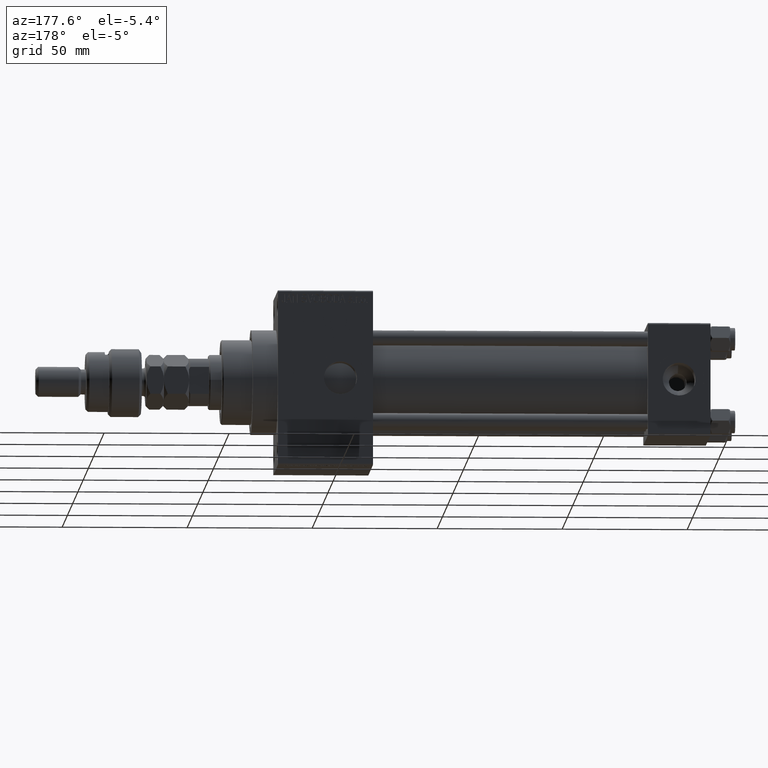
[diagram: clean part render]
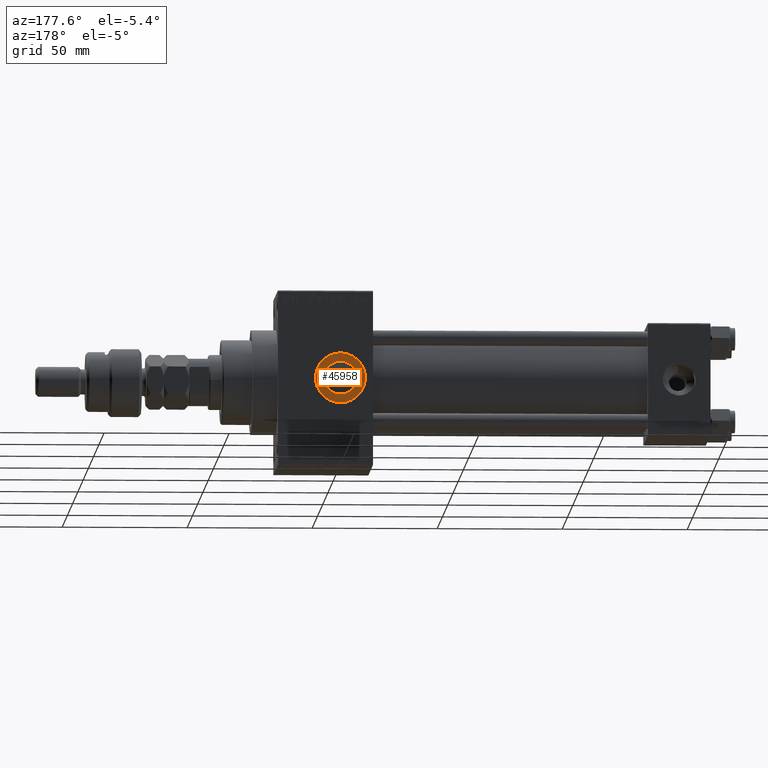
[diagram: same view with one face highlighted and labeled with its STEP entity id]
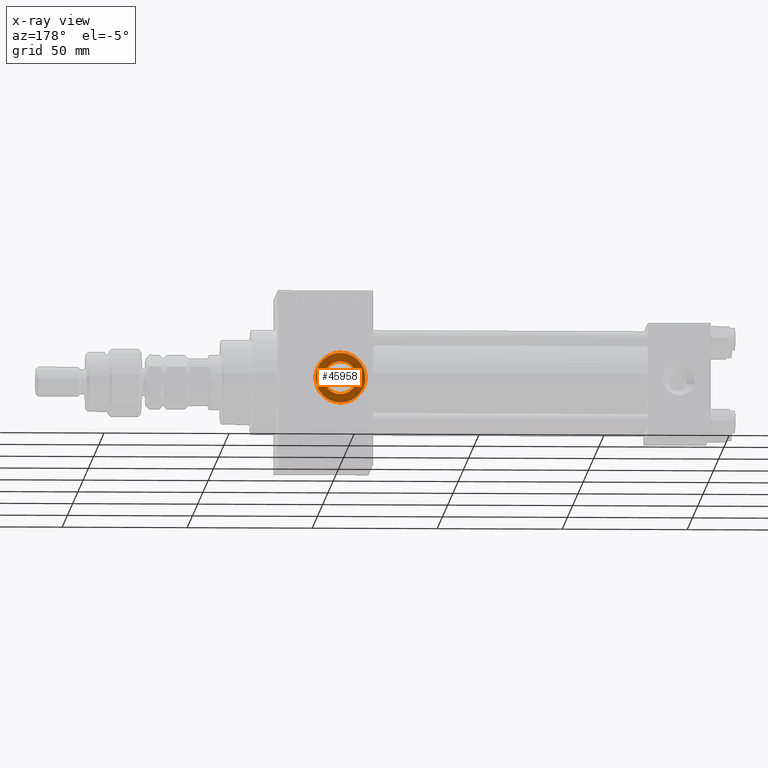
[diagram: x-ray of the same camera — body ghosted, the highlighted face saturated]
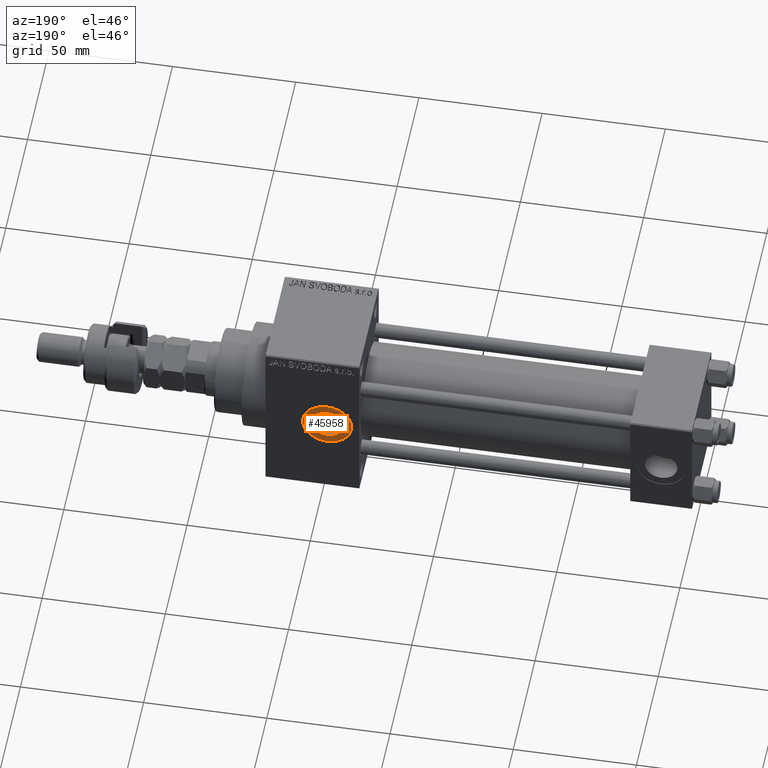
[diagram: same view with one face highlighted and labeled with its STEP entity id]
A machine part, auxiliary view. The second image highlights one B-rep face of the part: STEP entity #45958.
The next image is the same camera in x-ray: the body ghosted, the highlighted face saturated — about 0% of this face is hidden behind the body in this view.
A second angle (auxiliary view) of the same face is appended — the face is thin or edge-on in the first view.
In plain terms, the highlighted planar face has unit normal (0, 1, 0).
Its self-contained STEP definition (entity closure, byte-faithful):
#3219 = FACE_BOUND ( 'NONE', #48925, .T. ) ;
#4881 = CARTESIAN_POINT ( 'NONE',  ( 148.0000000000000284, 22.29999999999999716, 0.000000000000000000 ) ) ;
#5271 = VERTEX_POINT ( 'NONE', #45871 ) ;
#5526 = EDGE_CURVE ( 'NONE', #6396, #5271, #34018, .T. ) ;
#6396 = VERTEX_POINT ( 'NONE', #7973 ) ;
#6449 = AXIS2_PLACEMENT_3D ( 'NONE', #27892, #24224, #39959 ) ;
#7940 = FACE_OUTER_BOUND ( 'NONE', #33002, .T. ) ;
#7973 = CARTESIAN_POINT ( 'NONE',  ( 148.0000000000000284, 22.29999999999999716, 10.00000000000000888 ) ) ;
#11550 = AXIS2_PLACEMENT_3D ( 'NONE', #4881, #25651, #24883 ) ;
#11610 = EDGE_CURVE ( 'NONE', #48367, #46252, #20210, .T. ) ;
#12157 = DIRECTION ( 'NONE',  ( 0.000000000000000000, 1.000000000000000000, 0.000000000000000000 ) ) ;
#13766 = DIRECTION ( 'NONE',  ( 0.000000000000000000, 0.000000000000000000, 1.000000000000000000 ) ) ;
#16196 = CARTESIAN_POINT ( 'NONE',  ( 148.0000000000000284, 22.29999999999999716, 0.000000000000000000 ) ) ;
#16402 = ORIENTED_EDGE ( 'NONE', *, *, #50327, .F. ) ;
#17714 = CARTESIAN_POINT ( 'NONE',  ( 148.0000000000000284, 22.29999999999999716, 0.000000000000000000 ) ) ;
#18048 = AXIS2_PLACEMENT_3D ( 'NONE', #39218, #12157, #44179 ) ;
#19815 = ORIENTED_EDGE ( 'NONE', *, *, #51179, .T. ) ;
#20210 = CIRCLE ( 'NONE', #31939, 6.580000000000015170 ) ;
#23828 = DIRECTION ( 'NONE',  ( 0.000000000000000000, 0.000000000000000000, 1.000000000000000000 ) ) ;
#24224 = DIRECTION ( 'NONE',  ( 0.000000000000000000, 1.000000000000000000, 0.000000000000000000 ) ) ;
#24883 = DIRECTION ( 'NONE',  ( 0.000000000000000000, 0.000000000000000000, 1.000000000000000000 ) ) ;
#25651 = DIRECTION ( 'NONE',  ( 0.000000000000000000, 1.000000000000000000, 0.000000000000000000 ) ) ;
#26126 = DIRECTION ( 'NONE',  ( 0.000000000000000000, 1.000000000000000000, 0.000000000000000000 ) ) ;
#27892 = CARTESIAN_POINT ( 'NONE',  ( 148.0000000000000284, 22.29999999999999716, 0.000000000000000000 ) ) ;
#28884 = CARTESIAN_POINT ( 'NONE',  ( 148.0000000000000284, 22.29999999999999716, 6.580000000000015170 ) ) ;
#31755 = CARTESIAN_POINT ( 'NONE',  ( 148.0000000000000284, 22.29999999999999716, -6.580000000000015170 ) ) ;
#31939 = AXIS2_PLACEMENT_3D ( 'NONE', #16196, #31945, #23828 ) ;
#31945 = DIRECTION ( 'NONE',  ( 0.000000000000000000, 1.000000000000000000, 0.000000000000000000 ) ) ;
#33002 = EDGE_LOOP ( 'NONE', ( #40865, #19815 ) ) ;
#34018 = CIRCLE ( 'NONE', #49961, 10.00000000000000888 ) ;
#39198 = CIRCLE ( 'NONE', #6449, 10.00000000000000888 ) ;
#39218 = CARTESIAN_POINT ( 'NONE',  ( 148.0000000000000284, 22.29999999999999716, 0.000000000000000000 ) ) ;
#39959 = DIRECTION ( 'NONE',  ( 0.000000000000000000, 0.000000000000000000, 1.000000000000000000 ) ) ;
#40865 = ORIENTED_EDGE ( 'NONE', *, *, #5526, .T. ) ;
#44179 = DIRECTION ( 'NONE',  ( 0.000000000000000000, -0.000000000000000000, 1.000000000000000000 ) ) ;
#45871 = CARTESIAN_POINT ( 'NONE',  ( 148.0000000000000284, 22.29999999999999716, -10.00000000000000888 ) ) ;
#45958 = ADVANCED_FACE ( 'NONE', ( #3219, #7940 ), #48109, .T. ) ;
#46252 = VERTEX_POINT ( 'NONE', #28884 ) ;
#46719 = CIRCLE ( 'NONE', #11550, 6.580000000000015170 ) ;
#48109 = PLANE ( 'NONE',  #18048 ) ;
#48367 = VERTEX_POINT ( 'NONE', #31755 ) ;
#48925 = EDGE_LOOP ( 'NONE', ( #16402, #49778 ) ) ;
#49778 = ORIENTED_EDGE ( 'NONE', *, *, #11610, .F. ) ;
#49961 = AXIS2_PLACEMENT_3D ( 'NONE', #17714, #26126, #13766 ) ;
#50327 = EDGE_CURVE ( 'NONE', #46252, #48367, #46719, .T. ) ;
#51179 = EDGE_CURVE ( 'NONE', #5271, #6396, #39198, .T. ) ;